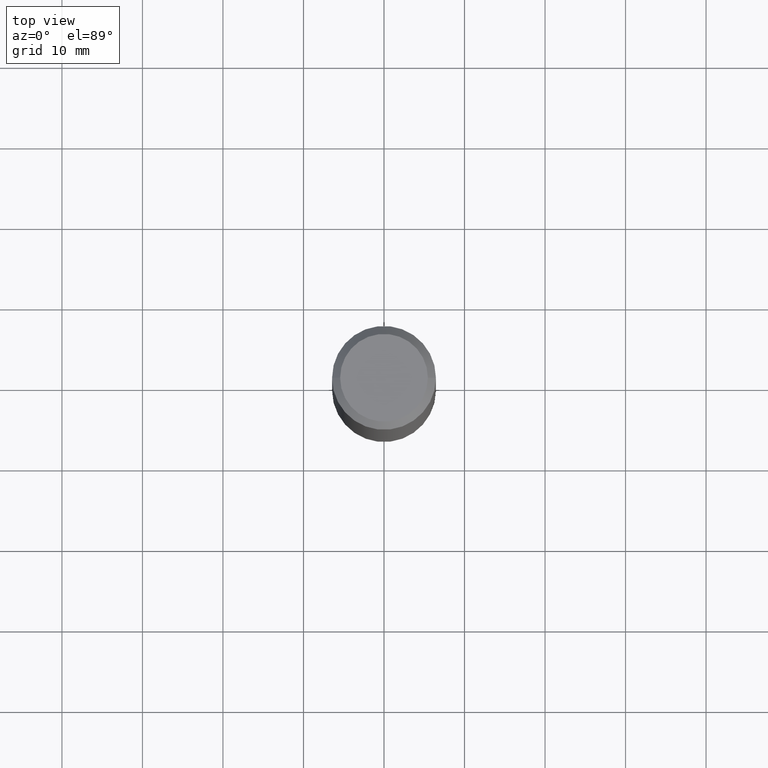
[diagram: clean part render]
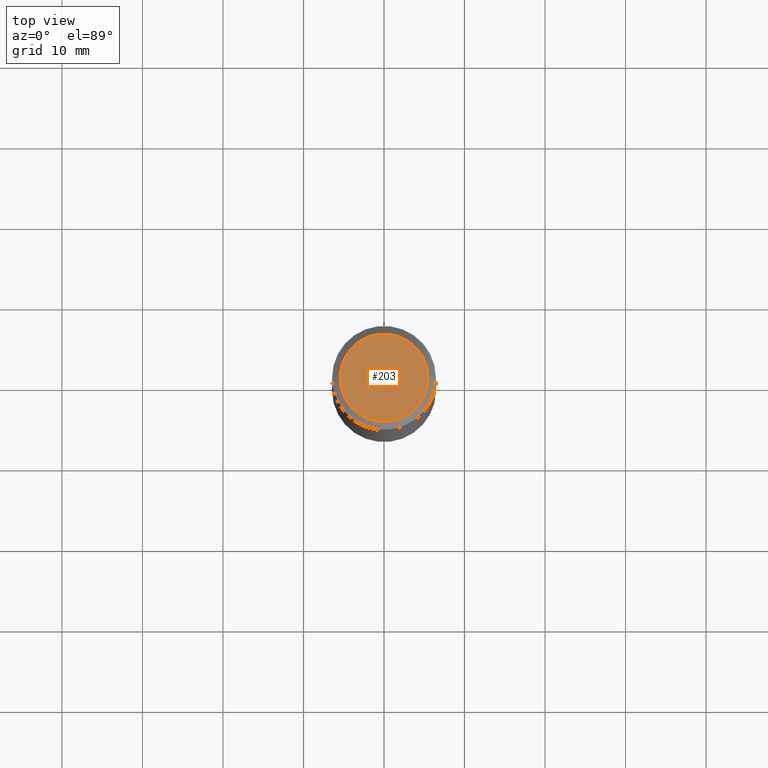
[diagram: same view with one face highlighted and labeled with its STEP entity id]
A machine part, top view. The second image highlights one B-rep face of the part: STEP entity #203.
In plain terms, the highlighted planar face has unit normal (0, 0, 1).
Its self-contained STEP definition (entity closure, byte-faithful):
#4 = EDGE_CURVE ( 'NONE', #65, #210, #22, .T. ) ;
#22 = CIRCLE ( 'NONE', #106, 5.449999999999996625 ) ;
#27 = DIRECTION ( 'NONE',  ( 0.000000000000000000, 0.000000000000000000, 1.000000000000000000 ) ) ;
#29 = DIRECTION ( 'NONE',  ( 1.000000000000000000, 0.000000000000000000, 0.000000000000000000 ) ) ;
#62 = DIRECTION ( 'NONE',  ( 0.000000000000000000, 0.000000000000000000, 1.000000000000000000 ) ) ;
#65 = VERTEX_POINT ( 'NONE', #95 ) ;
#95 = CARTESIAN_POINT ( 'NONE',  ( -5.449999999999996625, 0.000000000000000000, 89.00000000000000000 ) ) ;
#106 = AXIS2_PLACEMENT_3D ( 'NONE', #232, #27, #29 ) ;
#132 = AXIS2_PLACEMENT_3D ( 'NONE', #256, #62, #148 ) ;
#148 = DIRECTION ( 'NONE',  ( 1.000000000000000000, 0.000000000000000000, -0.000000000000000000 ) ) ;
#170 = ORIENTED_EDGE ( 'NONE', *, *, #4, .T. ) ;
#172 = AXIS2_PLACEMENT_3D ( 'NONE', #198, #175, #219 ) ;
#175 = DIRECTION ( 'NONE',  ( 0.000000000000000000, 0.000000000000000000, 1.000000000000000000 ) ) ;
#193 = EDGE_LOOP ( 'NONE', ( #170, #252 ) ) ;
#195 = FACE_OUTER_BOUND ( 'NONE', #193, .T. ) ;
#198 = CARTESIAN_POINT ( 'NONE',  ( 0.000000000000000000, 0.000000000000000000, 89.00000000000000000 ) ) ;
#203 = ADVANCED_FACE ( 'NONE', ( #195 ), #255, .T. ) ;
#210 = VERTEX_POINT ( 'NONE', #214 ) ;
#214 = CARTESIAN_POINT ( 'NONE',  ( 5.449999999999996625, 7.286648454926749993E-16, 89.00000000000000000 ) ) ;
#215 = CIRCLE ( 'NONE', #172, 5.449999999999996625 ) ;
#219 = DIRECTION ( 'NONE',  ( 1.000000000000000000, 0.000000000000000000, 0.000000000000000000 ) ) ;
#232 = CARTESIAN_POINT ( 'NONE',  ( 0.000000000000000000, 0.000000000000000000, 89.00000000000000000 ) ) ;
#240 = EDGE_CURVE ( 'NONE', #210, #65, #215, .T. ) ;
#252 = ORIENTED_EDGE ( 'NONE', *, *, #240, .T. ) ;
#255 = PLANE ( 'NONE',  #132 ) ;
#256 = CARTESIAN_POINT ( 'NONE',  ( 0.000000000000000000, 0.000000000000000000, 89.00000000000000000 ) ) ;